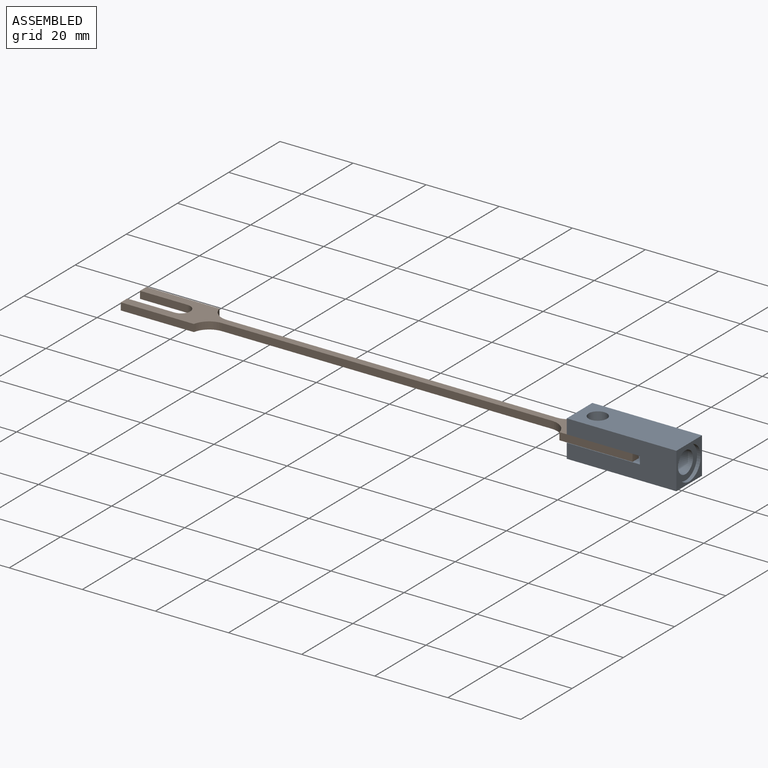
[diagram: assembled view]
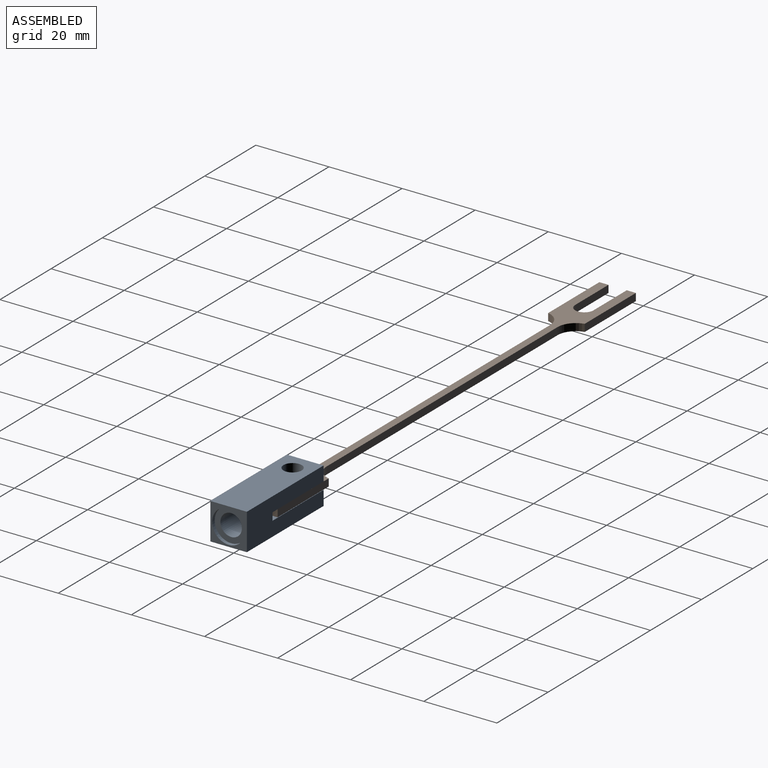
[diagram: assembled view, second angle]
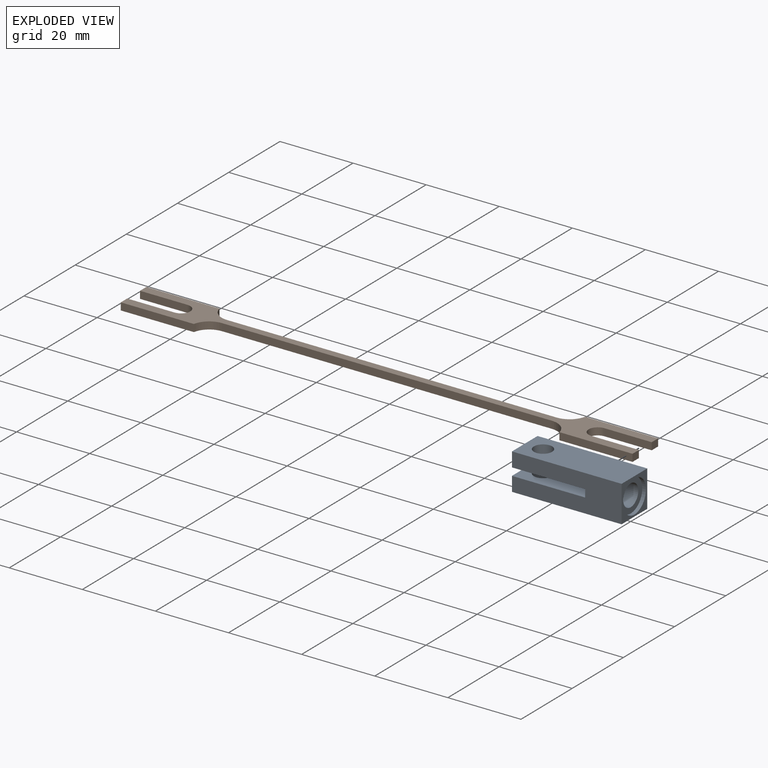
[diagram: exploded view]
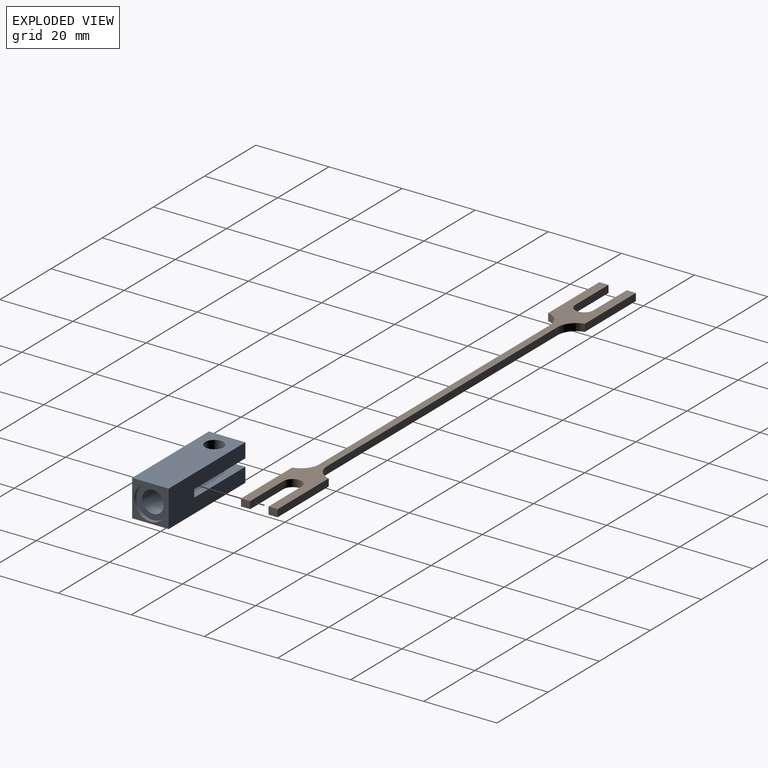
[diagram: exploded view, second angle]
ASSEMBLY  parts=2 mates=2
PART A: 18 faces, bbox 10x10x30 mm
  f0: plane 20x10mm, normal (0,-1,0), area 176.6mm2, adj f2,f4,f5,f9,f10,f11,f17
  f1: plane 20x10mm, normal (0,1,0), area 176.6mm2, adj f2,f3,f4,f5,f10,f15,f16
  f2: plane 2.24x2.1mm, normal (0,0,1), area 4.4mm2, adj f0,f1,f4,f12
  f3: plane 10x3.95mm, normal (0,0,1), area 39.5mm2, adj f1,f4,f5,f7
  f4: plane 30x10mm, normal (-1,0,0), area 258mm2, adj f0,f1,f2,f3,f6,f7,f8,f9
  f5: plane 30x10mm, normal (1,0,0), area 258mm2, adj f0,f1,f3,f6,f7,f8,f9,f10
  f6: plane 30x10mm, normal (0,1,0), area 280.4mm2, adj f4,f5,f8,f9,f17
  f7: plane 30x10mm, normal (0,-1,0), area 280.4mm2, adj f3,f4,f5,f8,f16
  f8: plane 10x10mm, normal (0,0,-1), area 36.4mm2, adj f4,f5,f6,f7,f14
  f9: plane 10x3.95mm, normal (0,0,1), area 39.5mm2, adj f0,f4,f5,f6
  f10: plane 2.24x2.1mm, normal (0,0,1), area 4.4mm2, adj f0,f1,f5,f12
  f11: cone r=0mm half-angle=59deg, axis (0,0,-1), area 8.9mm2, adj f0,f12
  f12: cylinder r=2.95mm len=9mm, axis (0,0,-1), area 166.8mm2, adj f2,f10,f11,f13,f15
  f13: plane 9x9mm, normal (0,0,-1), area 36.3mm2, adj f12,f14
  f14: cylinder r=4.5mm len=9mm, axis (0,0,-1), area 28.3mm2, adj f8,f13
  f15: cone r=0mm half-angle=59deg, axis (0,0,-1), area 8.9mm2, adj f1,f12
  f16: cylinder r=2.5mm len=5mm, axis (0,1,0), area 62mm2, adj f1,f7
  f17: cylinder r=2.5mm len=5mm, axis (0,1,0), area 62mm2, adj f0,f6
PART B: 22 faces, bbox 140x10x2 mm
  f0: plane 2.5x2mm, normal (1,0,0), area 5mm2, adj f3,f6,f7,f10
  f1: plane 90.2x2mm, normal (0,1,0), area 180.4mm2, adj f6,f7,f9,f18
  f2: plane 90.2x2mm, normal (0,-1,0), area 180.4mm2, adj f6,f7,f8,f17
  f3: plane 20x2mm, normal (0,-1,0), area 40mm2, adj f0,f6,f7,f8
  f4: plane 2.5x2mm, normal (1,0,0), area 5mm2, adj f5,f6,f7,f11
  f5: plane 20x2mm, normal (0,1,0), area 40mm2, adj f4,f6,f7,f9
  f6: plane 140x10mm, normal (0,0,1), area 470.1mm2, adj f0,f1,f2,f3,f4,f5,f8,f9
  f7: plane 140x10mm, normal (0,0,-1), area 470.1mm2, adj f0,f1,f2,f3,f4,f5,f8,f9
  f8: cylinder r=5mm len=4.9mm, axis (0,0,1), area 13.7mm2, adj f2,f3,f6,f7
  f9: cylinder r=5mm len=4.9mm, axis (0,0,-1), area 13.7mm2, adj f1,f5,f6,f7
  f10: plane 13x2mm, normal (0,1,0), area 26mm2, adj f0,f6,f7,f12
  f11: plane 13x2mm, normal (0,-1,0), area 26mm2, adj f4,f6,f7,f12
  f12: cylinder r=2.5mm len=5mm, axis (0,0,1), area 15.7mm2, adj f6,f7,f10,f11
  f13: plane 2.5x2mm, normal (-1,0,0), area 5mm2, adj f6,f7,f14,f19
  f14: plane 20x2mm, normal (0,-1,0), area 40mm2, adj f6,f7,f13,f17
  f15: plane 2.5x2mm, normal (-1,0,0), area 5mm2, adj f6,f7,f16,f20
  f16: plane 20x2mm, normal (0,1,0), area 40mm2, adj f6,f7,f15,f18
  f17: cylinder r=5mm len=4.9mm, axis (0,0,1), area 13.7mm2, adj f2,f6,f7,f14
  f18: cylinder r=5mm len=4.9mm, axis (0,0,-1), area 13.7mm2, adj f1,f6,f7,f16
  f19: plane 13x2mm, normal (0,1,0), area 26mm2, adj f6,f7,f13,f21
  f20: plane 13x2mm, normal (0,-1,0), area 26mm2, adj f6,f7,f15,f21
  f21: cylinder r=2.5mm len=5mm, axis (0,0,1), area 15.7mm2, adj f6,f7,f19,f20
PLACE A rot(axis=(0.58,-0.58,-0.58),120deg) t=(52,54.55,-59.66)mm
PLACE B t=(0,0,-5.81)mm
MATE planar A.f0 <-> B.f6  axis (0,0,-1) through (62.35,0,-3.81)mm
MATE parallel A.f5 <-> B.f3  axis (0,-1,0) through (67.81,-5,-4.86)mm
